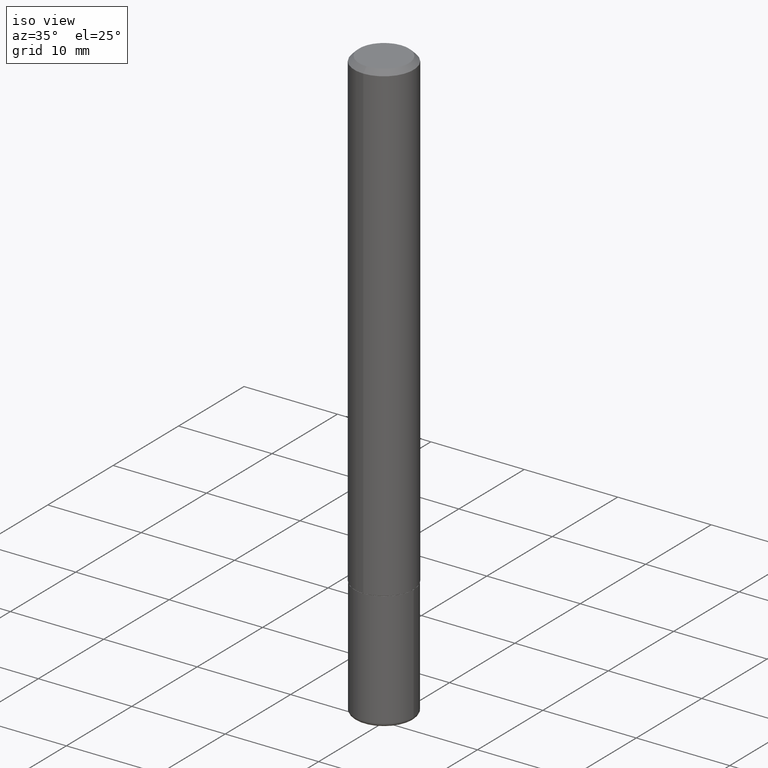
[diagram: clean part render]
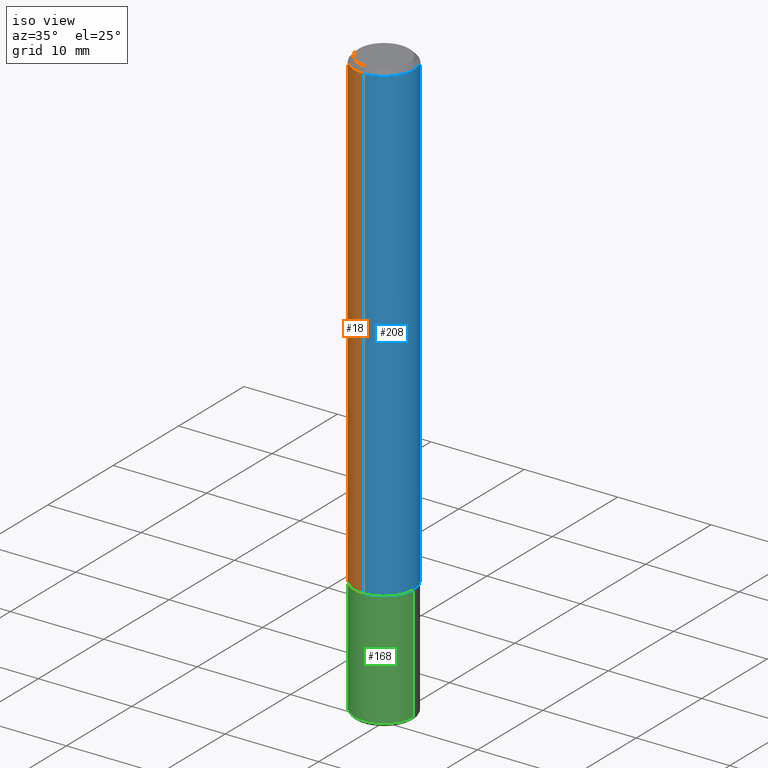
[diagram: same view with three faces highlighted in distinct colors, each labeled with its STEP entity id]
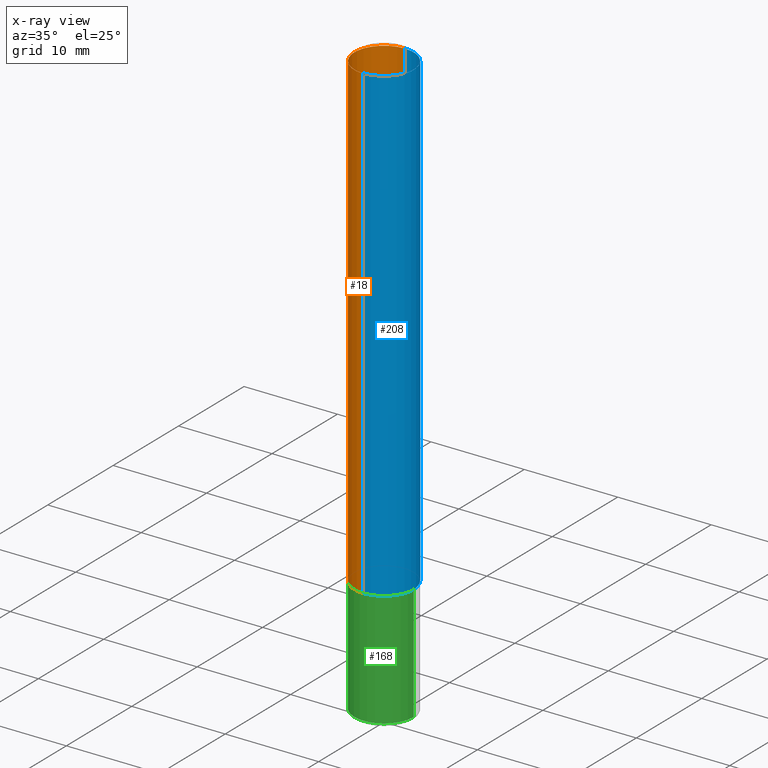
[diagram: x-ray of the same camera — body ghosted, the three highlighted faces saturated]
A machine part, iso view with three faces highlighted in distinct colors.
The next image is the same camera in x-ray (body ghosted, the three faces saturated) — at least one of them is partly hidden behind the body in this view.
Their STEP definitions:

[orange] entity #18 — the highlighted cylindrical surface (edge-blend (fillet) strip) has radius 3.175 mm, axis along (-0, 0, 1).
#18 = ADVANCED_FACE ( 'NONE', ( #57 ), #124, .T. ) ;
#41 = DIRECTION ( 'NONE',  ( -6.982962677686265133E-15, -1.000000000000000000, 3.491396681723779900E-15 ) ) ;
#57 = FACE_OUTER_BOUND ( 'NONE', #94, .T. ) ;
#58 = CARTESIAN_POINT ( 'NONE',  ( 8.881784197001508703E-16, 0.1249999999999932415, -1.999000000000000554 ) ) ;
#60 = EDGE_CURVE ( 'NONE', #69, #333, #371, .T. ) ;
#69 = VERTEX_POINT ( 'NONE', #58 ) ;
#90 = CARTESIAN_POINT ( 'NONE',  ( 8.728703347107834374E-16, 0.1249999999999999029, -0.02000000000000046185 ) ) ;
#94 = EDGE_LOOP ( 'NONE', ( #286, #356, #280, #360 ) ) ;
#124 = CYLINDRICAL_SURFACE ( 'NONE', #149, 0.1250000000000001110 ) ;
#127 = VERTEX_POINT ( 'NONE', #90 ) ;
#149 = AXIS2_PLACEMENT_3D ( 'NONE', #382, #272, #41 ) ;
#153 = DIRECTION ( 'NONE',  ( -2.445527921935629796E-29, 3.491396681723780689E-15, 1.000000000000000000 ) ) ;
#161 = VERTEX_POINT ( 'NONE', #375 ) ;
#170 = CIRCLE ( 'NONE', #250, 0.1249999999999999584 ) ;
#184 = LINE ( 'NONE', #246, #299 ) ;
#198 = DIRECTION ( 'NONE',  ( -6.982962677686265922E-15, -1.000000000000000000, 3.483106191921936738E-15 ) ) ;
#209 = DIRECTION ( 'NONE',  ( -2.445527921935629796E-29, 3.491396681723780689E-15, 1.000000000000000000 ) ) ;
#210 = CARTESIAN_POINT ( 'NONE',  ( -8.728703347107839305E-16, -0.1250000000000001110, 4.364245852154728820E-16 ) ) ;
#213 = CARTESIAN_POINT ( 'NONE',  ( 4.888610315949323001E-29, -6.979301966765836019E-15, -1.998999999999999888 ) ) ;
#233 = DIRECTION ( 'NONE',  ( -2.445527921935629516E-29, 3.491396681723780295E-15, 1.000000000000000000 ) ) ;
#246 = CARTESIAN_POINT ( 'NONE',  ( 8.881784197001258240E-16, 0.1250000000000001110, -4.364245852154728820E-16 ) ) ;
#250 = AXIS2_PLACEMENT_3D ( 'NONE', #400, #233, #198 ) ;
#272 = DIRECTION ( 'NONE',  ( -2.445527921935629516E-29, 3.491396681723780295E-15, 1.000000000000000000 ) ) ;
#279 = LINE ( 'NONE', #210, #342 ) ;
#280 = ORIENTED_EDGE ( 'NONE', *, *, #394, .T. ) ;
#286 = ORIENTED_EDGE ( 'NONE', *, *, #368, .F. ) ;
#288 = DIRECTION ( 'NONE',  ( -2.445527921935629516E-29, 3.491396681723780295E-15, 1.000000000000000000 ) ) ;
#299 = VECTOR ( 'NONE', #209, 39.37007874015748143 ) ;
#308 = EDGE_CURVE ( 'NONE', #127, #161, #170, .T. ) ;
#332 = AXIS2_PLACEMENT_3D ( 'NONE', #213, #288, #376 ) ;
#333 = VERTEX_POINT ( 'NONE', #353 ) ;
#342 = VECTOR ( 'NONE', #153, 39.37007874015748143 ) ;
#353 = CARTESIAN_POINT ( 'NONE',  ( -8.728703347107360072E-16, -0.1250000000000072164, -1.998999999999999444 ) ) ;
#356 = ORIENTED_EDGE ( 'NONE', *, *, #60, .T. ) ;
#360 = ORIENTED_EDGE ( 'NONE', *, *, #308, .F. ) ;
#368 = EDGE_CURVE ( 'NONE', #69, #127, #184, .T. ) ;
#371 = CIRCLE ( 'NONE', #332, 0.1250000000000002498 ) ;
#375 = CARTESIAN_POINT ( 'NONE',  ( -8.575622497214406564E-16, -0.1250000000000000278, -0.01999999999999959102 ) ) ;
#376 = DIRECTION ( 'NONE',  ( -6.982962677686265133E-15, -1.000000000000000000, 4.370956789862812472E-15 ) ) ;
#382 = CARTESIAN_POINT ( 'NONE',  ( 0.000000000000000000, 0.000000000000000000, 0.000000000000000000 ) ) ;
#394 = EDGE_CURVE ( 'NONE', #333, #161, #279, .T. ) ;
#400 = CARTESIAN_POINT ( 'NONE',  ( 4.891055843871264462E-31, -6.982793363447569119E-17, -0.02000000000000002470 ) ) ;

[blue] entity #208 — the highlighted cylindrical surface (edge-blend (fillet) strip) has radius 3.175 mm, axis along (-0, 0, 1).
#2 = CARTESIAN_POINT ( 'NONE',  ( 4.891055843871264462E-31, -6.982793363447569119E-17, -0.02000000000000002470 ) ) ;
#34 = CARTESIAN_POINT ( 'NONE',  ( 4.888610315949323001E-29, -6.979301966765836019E-15, -1.998999999999999888 ) ) ;
#45 = EDGE_CURVE ( 'NONE', #161, #127, #55, .T. ) ;
#55 = CIRCLE ( 'NONE', #298, 0.1249999999999999584 ) ;
#58 = CARTESIAN_POINT ( 'NONE',  ( 8.881784197001508703E-16, 0.1249999999999932415, -1.999000000000000554 ) ) ;
#62 = DIRECTION ( 'NONE',  ( -6.982962677686265922E-15, -1.000000000000000000, 3.483106191921936738E-15 ) ) ;
#69 = VERTEX_POINT ( 'NONE', #58 ) ;
#90 = CARTESIAN_POINT ( 'NONE',  ( 8.728703347107834374E-16, 0.1249999999999999029, -0.02000000000000046185 ) ) ;
#96 = DIRECTION ( 'NONE',  ( -2.445527921935629516E-29, 3.491396681723780295E-15, 1.000000000000000000 ) ) ;
#102 = ORIENTED_EDGE ( 'NONE', *, *, #143, .T. ) ;
#106 = ORIENTED_EDGE ( 'NONE', *, *, #368, .T. ) ;
#127 = VERTEX_POINT ( 'NONE', #90 ) ;
#138 = CARTESIAN_POINT ( 'NONE',  ( 0.000000000000000000, 0.000000000000000000, 0.000000000000000000 ) ) ;
#143 = EDGE_CURVE ( 'NONE', #333, #69, #221, .T. ) ;
#153 = DIRECTION ( 'NONE',  ( -2.445527921935629796E-29, 3.491396681723780689E-15, 1.000000000000000000 ) ) ;
#161 = VERTEX_POINT ( 'NONE', #375 ) ;
#165 = AXIS2_PLACEMENT_3D ( 'NONE', #34, #283, #417 ) ;
#184 = LINE ( 'NONE', #246, #299 ) ;
#195 = DIRECTION ( 'NONE',  ( -6.982962677686265133E-15, -1.000000000000000000, 3.491396681723779900E-15 ) ) ;
#199 = AXIS2_PLACEMENT_3D ( 'NONE', #138, #357, #195 ) ;
#208 = ADVANCED_FACE ( 'NONE', ( #354 ), #224, .T. ) ;
#209 = DIRECTION ( 'NONE',  ( -2.445527921935629796E-29, 3.491396681723780689E-15, 1.000000000000000000 ) ) ;
#210 = CARTESIAN_POINT ( 'NONE',  ( -8.728703347107839305E-16, -0.1250000000000001110, 4.364245852154728820E-16 ) ) ;
#221 = CIRCLE ( 'NONE', #165, 0.1250000000000002498 ) ;
#224 = CYLINDRICAL_SURFACE ( 'NONE', #199, 0.1250000000000001110 ) ;
#246 = CARTESIAN_POINT ( 'NONE',  ( 8.881784197001258240E-16, 0.1250000000000001110, -4.364245852154728820E-16 ) ) ;
#279 = LINE ( 'NONE', #210, #342 ) ;
#283 = DIRECTION ( 'NONE',  ( -2.445527921935629516E-29, 3.491396681723780295E-15, 1.000000000000000000 ) ) ;
#298 = AXIS2_PLACEMENT_3D ( 'NONE', #2, #96, #62 ) ;
#299 = VECTOR ( 'NONE', #209, 39.37007874015748143 ) ;
#333 = VERTEX_POINT ( 'NONE', #353 ) ;
#342 = VECTOR ( 'NONE', #153, 39.37007874015748143 ) ;
#353 = CARTESIAN_POINT ( 'NONE',  ( -8.728703347107360072E-16, -0.1250000000000072164, -1.998999999999999444 ) ) ;
#354 = FACE_OUTER_BOUND ( 'NONE', #393, .T. ) ;
#357 = DIRECTION ( 'NONE',  ( -2.445527921935629516E-29, 3.491396681723780295E-15, 1.000000000000000000 ) ) ;
#367 = ORIENTED_EDGE ( 'NONE', *, *, #45, .F. ) ;
#368 = EDGE_CURVE ( 'NONE', #69, #127, #184, .T. ) ;
#375 = CARTESIAN_POINT ( 'NONE',  ( -8.575622497214406564E-16, -0.1250000000000000278, -0.01999999999999959102 ) ) ;
#381 = ORIENTED_EDGE ( 'NONE', *, *, #394, .F. ) ;
#393 = EDGE_LOOP ( 'NONE', ( #102, #106, #367, #381 ) ) ;
#394 = EDGE_CURVE ( 'NONE', #333, #161, #279, .T. ) ;
#417 = DIRECTION ( 'NONE',  ( -6.982962677686265133E-15, -1.000000000000000000, 4.370956789862812472E-15 ) ) ;

[green] entity #168 — the highlighted cylindrical surface (edge-blend (fillet) strip) has radius 3.175 mm, axis along (-0, 0, 1).
#17 = AXIS2_PLACEMENT_3D ( 'NONE', #86, #339, #179 ) ;
#23 = EDGE_CURVE ( 'NONE', #291, #413, #374, .T. ) ;
#26 = VERTEX_POINT ( 'NONE', #361 ) ;
#27 = EDGE_CURVE ( 'NONE', #413, #26, #337, .T. ) ;
#38 = ORIENTED_EDGE ( 'NONE', *, *, #366, .T. ) ;
#61 = CARTESIAN_POINT ( 'NONE',  ( 0.000000000000000000, 0.000000000000000000, 0.000000000000000000 ) ) ;
#63 = EDGE_LOOP ( 'NONE', ( #396, #38, #228, #347 ) ) ;
#76 = DIRECTION ( 'NONE',  ( 1.000000000000000000, -6.982962677686270655E-15, 0.000000000000000000 ) ) ;
#84 = DIRECTION ( 'NONE',  ( -2.445468806185136597E-29, 3.491481338843145583E-15, 1.000000000000000000 ) ) ;
#86 = CARTESIAN_POINT ( 'NONE',  ( 6.076989983370064174E-29, -8.676331127025216680E-15, -2.484999999999999876 ) ) ;
#88 = CARTESIAN_POINT ( 'NONE',  ( -0.1250000000000000000, 8.881784197001252323E-16, -6.148668862818632227E-30 ) ) ;
#111 = VECTOR ( 'NONE', #335, 39.37007874015748143 ) ;
#128 = DIRECTION ( 'NONE',  ( -2.445468806185136597E-29, 3.491481338843145583E-15, 1.000000000000000000 ) ) ;
#132 = CYLINDRICAL_SURFACE ( 'NONE', #341, 0.1250000000000000000 ) ;
#168 = ADVANCED_FACE ( 'NONE', ( #287 ), #132, .T. ) ;
#179 = DIRECTION ( 'NONE',  ( 1.000000000000000000, -6.982962677686271444E-15, 0.000000000000000000 ) ) ;
#182 = CARTESIAN_POINT ( 'NONE',  ( 0.1250000000000000555, -9.549201461736000019E-15, -2.484999999999999876 ) ) ;
#203 = CARTESIAN_POINT ( 'NONE',  ( 0.1250000000000000000, -8.728703347107833388E-16, 6.095220969744919741E-30 ) ) ;
#228 = ORIENTED_EDGE ( 'NONE', *, *, #242, .T. ) ;
#242 = EDGE_CURVE ( 'NONE', #254, #26, #273, .T. ) ;
#243 = DIRECTION ( 'NONE',  ( -2.445468806185136877E-29, 3.491481338843145188E-15, 1.000000000000000000 ) ) ;
#254 = VERTEX_POINT ( 'NONE', #182 ) ;
#264 = CIRCLE ( 'NONE', #17, 0.1249999999999999861 ) ;
#271 = CARTESIAN_POINT ( 'NONE',  ( -0.1250000000000000555, -7.788152707325091448E-15, -2.484999999999999876 ) ) ;
#273 = LINE ( 'NONE', #203, #111 ) ;
#287 = FACE_OUTER_BOUND ( 'NONE', #63, .T. ) ;
#291 = VERTEX_POINT ( 'NONE', #271 ) ;
#295 = CARTESIAN_POINT ( 'NONE',  ( 4.890937612370273194E-29, -6.982962677686291165E-15, -2.000000000000000000 ) ) ;
#325 = AXIS2_PLACEMENT_3D ( 'NONE', #295, #84, #76 ) ;
#335 = DIRECTION ( 'NONE',  ( -2.445468806185136877E-29, 3.491481338843145188E-15, 1.000000000000000000 ) ) ;
#337 = CIRCLE ( 'NONE', #325, 0.1250000000000000000 ) ;
#338 = CARTESIAN_POINT ( 'NONE',  ( -0.1250000000000000000, -6.941468482655628296E-15, -2.000000000000000000 ) ) ;
#339 = DIRECTION ( 'NONE',  ( -2.445468806185136597E-29, 3.491481338843145583E-15, 1.000000000000000000 ) ) ;
#341 = AXIS2_PLACEMENT_3D ( 'NONE', #61, #128, #387 ) ;
#347 = ORIENTED_EDGE ( 'NONE', *, *, #27, .F. ) ;
#361 = CARTESIAN_POINT ( 'NONE',  ( 0.1250000000000000000, -7.855833012397075293E-15, -2.000000000000000000 ) ) ;
#366 = EDGE_CURVE ( 'NONE', #291, #254, #264, .T. ) ;
#374 = LINE ( 'NONE', #88, #409 ) ;
#387 = DIRECTION ( 'NONE',  ( 1.000000000000000000, -6.982962677686266711E-15, 4.876176775795935793E-29 ) ) ;
#396 = ORIENTED_EDGE ( 'NONE', *, *, #23, .F. ) ;
#409 = VECTOR ( 'NONE', #243, 39.37007874015748143 ) ;
#413 = VERTEX_POINT ( 'NONE', #338 ) ;